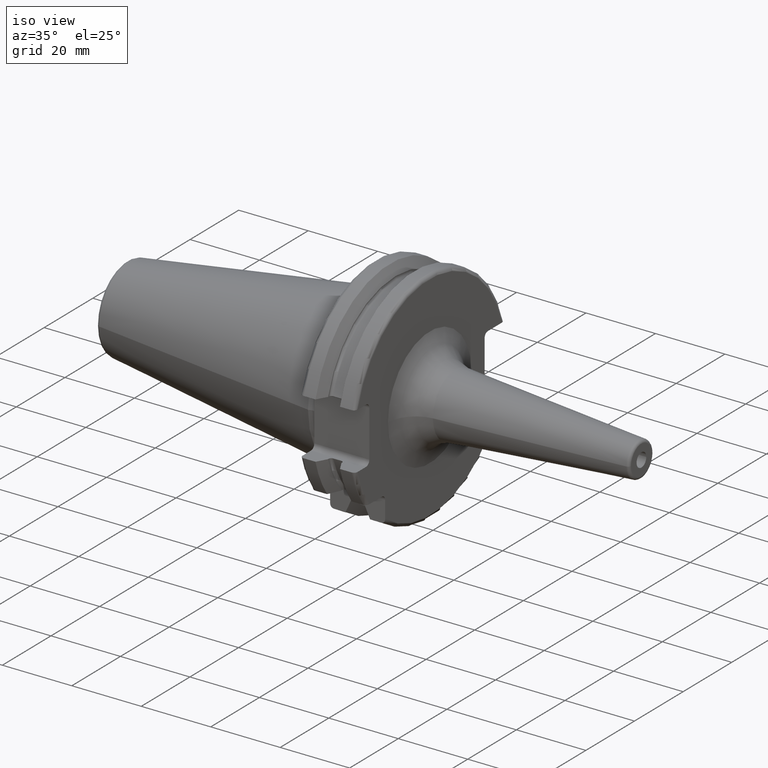
[diagram: clean part render]
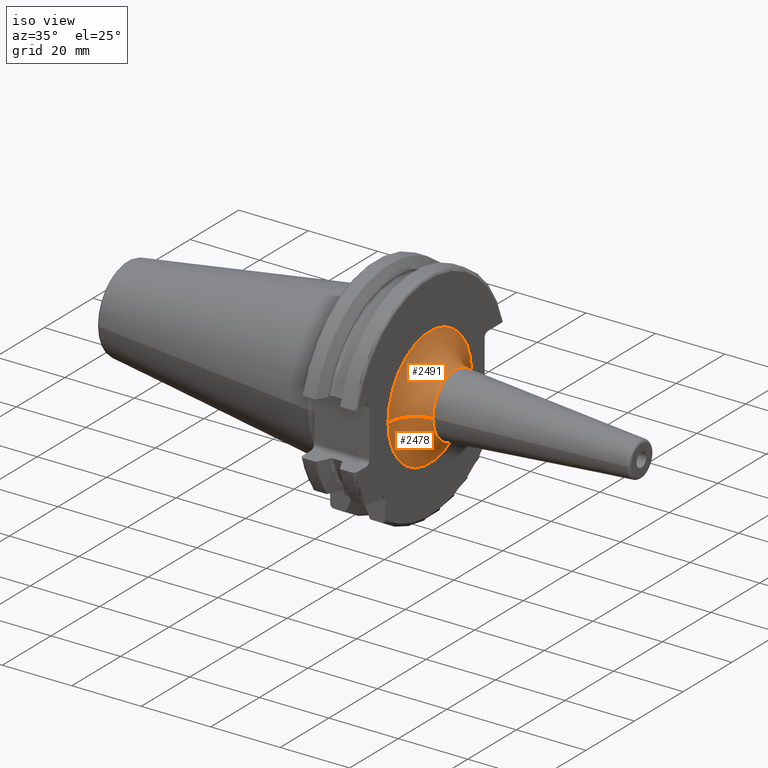
[diagram: same view with one multi-face feature highlighted, each face labeled with its STEP entity id]
A machine part, iso view. The highlighted faces form ONE feature: a constant-radius fillet chain: 2 tangent blend faces with common blend radius 8 mm. The faces share edges in the B-rep.
Their STEP definitions:
[1] entity #2491 (Torus):
#242=CARTESIAN_POINT('',(1.905E1,0.E0,0.E0));
#243=DIRECTION('',(1.E0,0.E0,0.E0));
#244=DIRECTION('',(0.E0,1.E0,0.E0));
#245=AXIS2_PLACEMENT_3D('',#242,#243,#244);
#938=CARTESIAN_POINT('',(2.705E1,-1.719199296423E1,5.292066784790E-11));
#939=DIRECTION('',(0.E0,-3.078214766417E-12,-1.E0));
#940=DIRECTION('',(-1.E0,2.979838598094E-13,0.E0));
#941=AXIS2_PLACEMENT_3D('',#938,#939,#940);
#943=CARTESIAN_POINT('',(2.705E1,1.719199296423E1,-5.292283278280E-11));
#944=DIRECTION('',(0.E0,3.078339666507E-12,1.E0));
#945=DIRECTION('',(-1.E0,-2.975397705995E-13,0.E0));
#946=AXIS2_PLACEMENT_3D('',#943,#944,#945);
#953=CARTESIAN_POINT('',(2.642232723418E1,0.E0,0.E0));
#954=DIRECTION('',(1.E0,0.E0,0.E0));
#955=DIRECTION('',(0.E0,1.E0,0.E0));
#956=AXIS2_PLACEMENT_3D('',#953,#954,#955);
#1480=CARTESIAN_POINT('',(1.905E1,-1.719199296423E1,0.E0));
#1481=CARTESIAN_POINT('',(1.905E1,1.719199296423E1,0.E0));
#1482=VERTEX_POINT('',#1480);
#1483=VERTEX_POINT('',#1481);
#1484=CARTESIAN_POINT('',(2.642232723418E1,-9.216654294361E0,0.E0));
#1485=CARTESIAN_POINT('',(2.642232723418E1,9.216654294361E0,0.E0));
#1486=VERTEX_POINT('',#1484);
#1487=VERTEX_POINT('',#1485);
#2479=CARTESIAN_POINT('',(2.705E1,0.E0,0.E0));
#2480=DIRECTION('',(1.E0,0.E0,0.E0));
#2481=DIRECTION('',(0.E0,9.997840234329E-1,-2.078236002819E-2));
#2482=AXIS2_PLACEMENT_3D('',#2479,#2480,#2481);
#2483=TOROIDAL_SURFACE('',#2482,1.719199296423E1,8.E0);
#2484=ORIENTED_EDGE('',*,*,#1814,.F.);
#2485=ORIENTED_EDGE('',*,*,#2474,.T.);
#2487=ORIENTED_EDGE('',*,*,#2486,.T.);
#2488=ORIENTED_EDGE('',*,*,#2470,.F.);
#2489=EDGE_LOOP('',(#2484,#2485,#2487,#2488));
#2490=FACE_OUTER_BOUND('',#2489,.F.);
#2491=ADVANCED_FACE('',(#2490),#2483,.F.);
#246=CIRCLE('',#245,1.719199296423E1);
#942=CIRCLE('',#941,8.E0);
#947=CIRCLE('',#946,8.E0);
#957=CIRCLE('',#956,9.216654294361E0);
#1814=EDGE_CURVE('',#1483,#1482,#246,.T.);
#2470=EDGE_CURVE('',#1482,#1486,#942,.T.);
#2474=EDGE_CURVE('',#1483,#1487,#947,.T.);
#2486=EDGE_CURVE('',#1487,#1486,#957,.T.);
[2] entity #2478 (Torus):
#237=CARTESIAN_POINT('',(1.905E1,0.E0,0.E0));
#238=DIRECTION('',(1.E0,0.E0,0.E0));
#239=DIRECTION('',(0.E0,-1.E0,0.E0));
#240=AXIS2_PLACEMENT_3D('',#237,#238,#239);
#938=CARTESIAN_POINT('',(2.705E1,-1.719199296423E1,5.292066784790E-11));
#939=DIRECTION('',(0.E0,-3.078214766417E-12,-1.E0));
#940=DIRECTION('',(-1.E0,2.979838598094E-13,0.E0));
#941=AXIS2_PLACEMENT_3D('',#938,#939,#940);
#943=CARTESIAN_POINT('',(2.705E1,1.719199296423E1,-5.292283278280E-11));
#944=DIRECTION('',(0.E0,3.078339666507E-12,1.E0));
#945=DIRECTION('',(-1.E0,-2.975397705995E-13,0.E0));
#946=AXIS2_PLACEMENT_3D('',#943,#944,#945);
#977=CARTESIAN_POINT('',(2.642232723418E1,0.E0,0.E0));
#978=DIRECTION('',(1.E0,0.E0,0.E0));
#979=DIRECTION('',(0.E0,-1.E0,0.E0));
#980=AXIS2_PLACEMENT_3D('',#977,#978,#979);
#1480=CARTESIAN_POINT('',(1.905E1,-1.719199296423E1,0.E0));
#1481=CARTESIAN_POINT('',(1.905E1,1.719199296423E1,0.E0));
#1482=VERTEX_POINT('',#1480);
#1483=VERTEX_POINT('',#1481);
#1484=CARTESIAN_POINT('',(2.642232723418E1,-9.216654294361E0,0.E0));
#1485=CARTESIAN_POINT('',(2.642232723418E1,9.216654294361E0,0.E0));
#1486=VERTEX_POINT('',#1484);
#1487=VERTEX_POINT('',#1485);
#2464=CARTESIAN_POINT('',(2.705E1,0.E0,0.E0));
#2465=DIRECTION('',(1.E0,0.E0,0.E0));
#2466=DIRECTION('',(0.E0,-9.997840234329E-1,2.078236002819E-2));
#2467=AXIS2_PLACEMENT_3D('',#2464,#2465,#2466);
#2468=TOROIDAL_SURFACE('',#2467,1.719199296423E1,8.E0);
#2469=ORIENTED_EDGE('',*,*,#1812,.F.);
#2471=ORIENTED_EDGE('',*,*,#2470,.T.);
#2473=ORIENTED_EDGE('',*,*,#2472,.T.);
#2475=ORIENTED_EDGE('',*,*,#2474,.F.);
#2476=EDGE_LOOP('',(#2469,#2471,#2473,#2475));
#2477=FACE_OUTER_BOUND('',#2476,.F.);
#2478=ADVANCED_FACE('',(#2477),#2468,.F.);
#241=CIRCLE('',#240,1.719199296423E1);
#942=CIRCLE('',#941,8.E0);
#947=CIRCLE('',#946,8.E0);
#981=CIRCLE('',#980,9.216654294361E0);
#1812=EDGE_CURVE('',#1482,#1483,#241,.T.);
#2470=EDGE_CURVE('',#1482,#1486,#942,.T.);
#2472=EDGE_CURVE('',#1486,#1487,#981,.T.);
#2474=EDGE_CURVE('',#1483,#1487,#947,.T.);